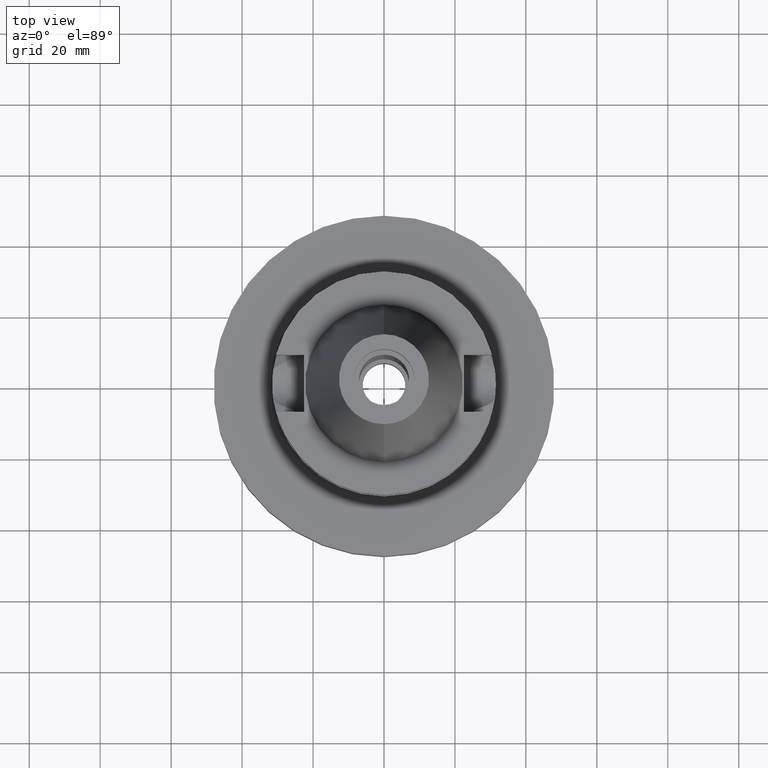
[diagram: clean part render]
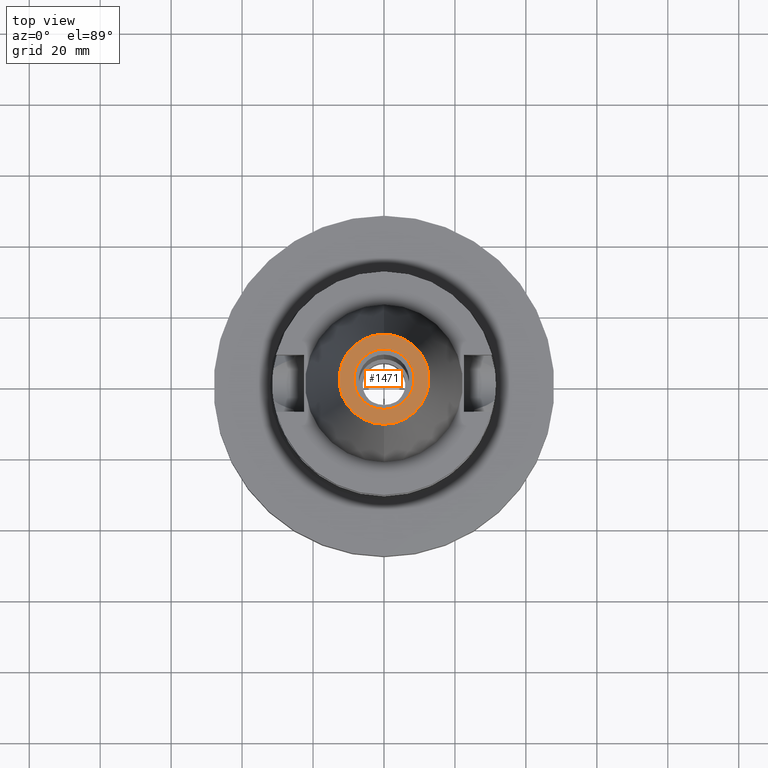
[diagram: same view with one face highlighted and labeled with its STEP entity id]
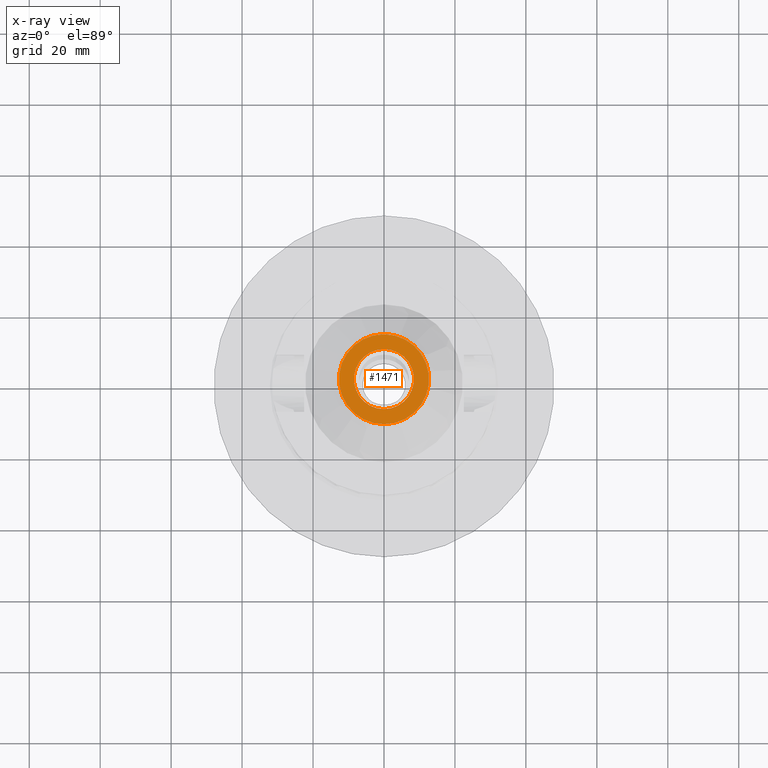
[diagram: x-ray of the same camera — body ghosted, the highlighted face saturated]
A machine part, top view. The second image highlights one B-rep face of the part: STEP entity #1471.
The next image is the same camera in x-ray: the body ghosted, the highlighted face saturated — about 0% of this face is hidden behind the body in this view.
In plain terms, the highlighted planar face has unit normal (0, 0, -1).
Its self-contained STEP definition (entity closure, byte-faithful):
#17=CARTESIAN_POINT('',(0.E0,1.625106302469E-14,6.54E1));
#18=DIRECTION('',(0.E0,0.E0,-1.E0));
#19=DIRECTION('',(0.E0,-1.E0,0.E0));
#20=AXIS2_PLACEMENT_3D('',#17,#18,#19);
#26=CARTESIAN_POINT('',(0.E0,1.625106302469E-14,6.54E1));
#27=DIRECTION('',(0.E0,0.E0,-1.E0));
#28=DIRECTION('',(0.E0,1.E0,0.E0));
#29=AXIS2_PLACEMENT_3D('',#26,#27,#28);
#34=CARTESIAN_POINT('',(0.E0,2.120720862083E-14,6.54E1));
#35=DIRECTION('',(0.E0,0.E0,1.E0));
#36=DIRECTION('',(0.E0,-1.E0,0.E0));
#37=AXIS2_PLACEMENT_3D('',#34,#35,#36);
#42=CARTESIAN_POINT('',(0.E0,2.120720862083E-14,6.54E1));
#43=DIRECTION('',(0.E0,0.E0,1.E0));
#44=DIRECTION('',(0.E0,1.E0,0.E0));
#45=AXIS2_PLACEMENT_3D('',#42,#43,#44);
#1253=CARTESIAN_POINT('',(0.E0,-1.268766899430E1,6.54E1));
#1254=CARTESIAN_POINT('',(0.E0,1.268766899430E1,6.54E1));
#1255=VERTEX_POINT('',#1253);
#1256=VERTEX_POINT('',#1254);
#1257=CARTESIAN_POINT('',(0.E0,-8.5E0,6.54E1));
#1258=CARTESIAN_POINT('',(0.E0,8.5E0,6.54E1));
#1259=VERTEX_POINT('',#1257);
#1260=VERTEX_POINT('',#1258);
#1454=CARTESIAN_POINT('',(0.E0,2.025565805790E-14,6.54E1));
#1455=DIRECTION('',(0.E0,0.E0,-1.E0));
#1456=DIRECTION('',(0.E0,-1.E0,0.E0));
#1457=AXIS2_PLACEMENT_3D('',#1454,#1455,#1456);
#1458=PLANE('',#1457);
#1460=ORIENTED_EDGE('',*,*,#1459,.T.);
#1462=ORIENTED_EDGE('',*,*,#1461,.T.);
#1463=EDGE_LOOP('',(#1460,#1462));
#1464=FACE_OUTER_BOUND('',#1463,.F.);
#1466=ORIENTED_EDGE('',*,*,#1465,.T.);
#1468=ORIENTED_EDGE('',*,*,#1467,.T.);
#1469=EDGE_LOOP('',(#1466,#1468));
#1470=FACE_BOUND('',#1469,.F.);
#21=CIRCLE('',#20,1.268766899430E1);
#30=CIRCLE('',#29,1.268766899430E1);
#38=CIRCLE('',#37,8.5E0);
#46=CIRCLE('',#45,8.5E0);
#1459=EDGE_CURVE('',#1255,#1256,#21,.T.);
#1461=EDGE_CURVE('',#1256,#1255,#30,.T.);
#1465=EDGE_CURVE('',#1259,#1260,#38,.T.);
#1467=EDGE_CURVE('',#1260,#1259,#46,.T.);
#1471=ADVANCED_FACE('',(#1464,#1470),#1458,.F.);